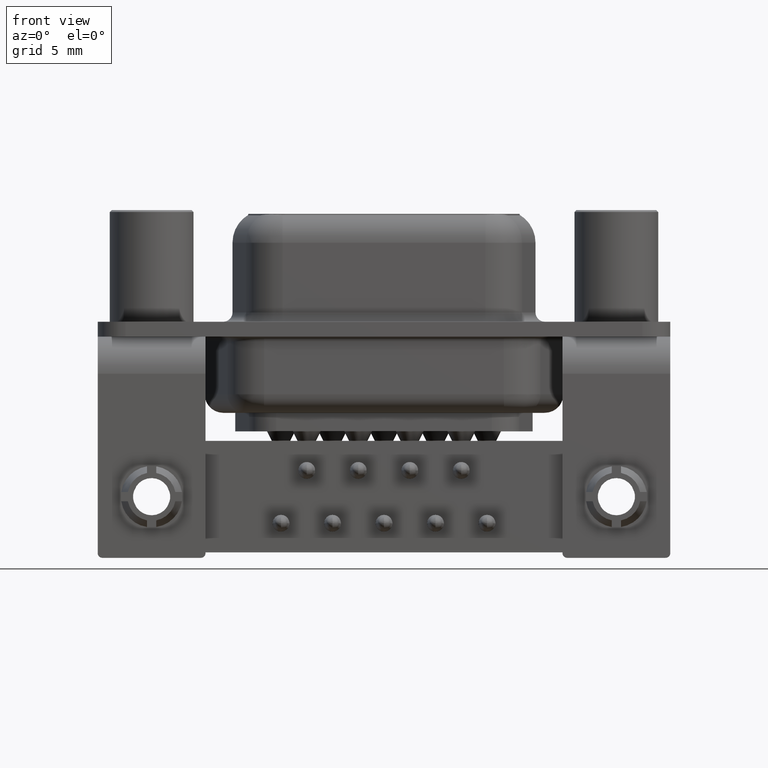
[diagram: clean part render]
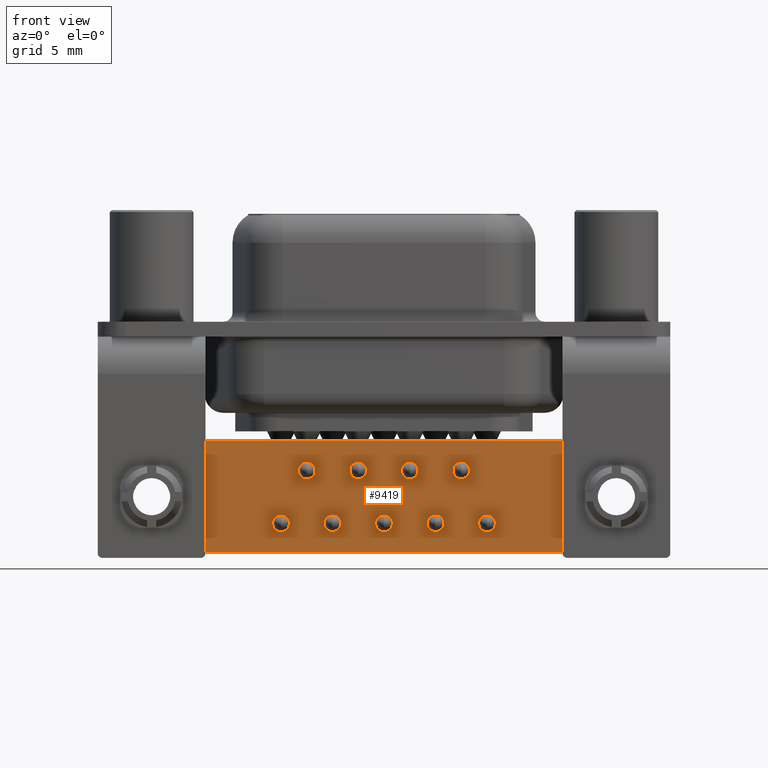
[diagram: same view with one face highlighted and labeled with its STEP entity id]
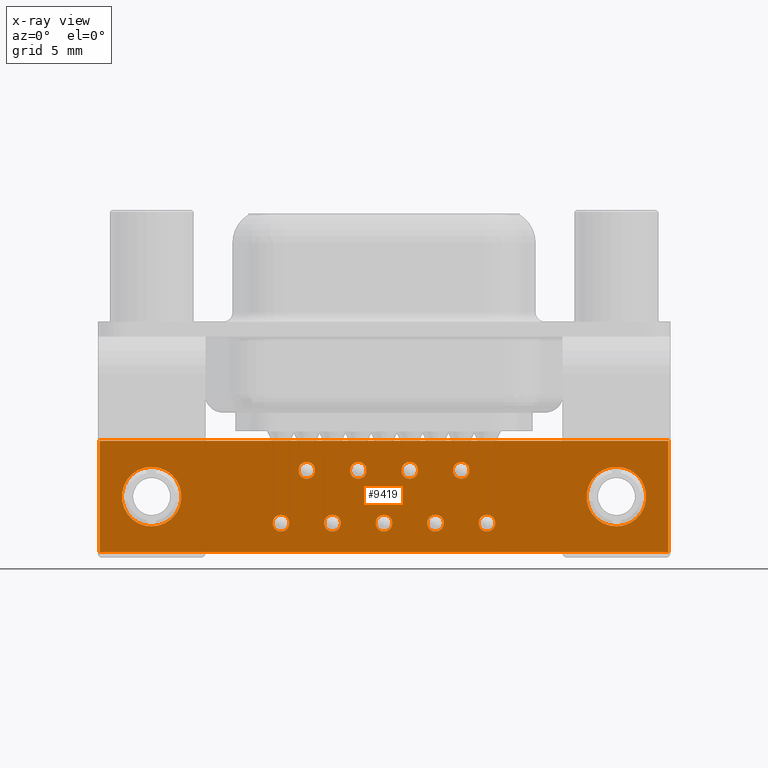
[diagram: x-ray of the same camera — body ghosted, the highlighted face saturated]
A machine part, front view. The second image highlights one B-rep face of the part: STEP entity #9419.
The next image is the same camera in x-ray: the body ghosted, the highlighted face saturated — about 0% of this face is hidden behind the body in this view.
In plain terms, the highlighted planar face has unit normal (0, 1, 0).
Its self-contained STEP definition (entity closure, byte-faithful):
#39 = VERTEX_POINT ( 'NONE', #11352 ) ;
#106 = DIRECTION ( 'NONE',  ( 0.0000000000000000000, 1.000000000000000000, 0.0000000000000000000 ) ) ;
#107 = FACE_BOUND ( 'NONE', #20068, .T. ) ;
#195 = DIRECTION ( 'NONE',  ( 0.0000000000000000000, 1.000000000000000000, 0.0000000000000000000 ) ) ;
#321 = ORIENTED_EDGE ( 'NONE', *, *, #4586, .F. ) ;
#408 = EDGE_CURVE ( 'NONE', #2821, #12172, #1470, .T. ) ;
#449 = DIRECTION ( 'NONE',  ( 0.0000000000000000000, 1.000000000000000000, 0.0000000000000000000 ) ) ;
#498 = EDGE_CURVE ( 'NONE', #19848, #5419, #979, .T. ) ;
#499 = EDGE_LOOP ( 'NONE', ( #11641, #12854 ) ) ;
#595 = CARTESIAN_POINT ( 'NONE',  ( 8.345000000000002400, -4.750000000000000000, -7.599999999999999600 ) ) ;
#657 = AXIS2_PLACEMENT_3D ( 'NONE', #4596, #15545, #6190 ) ;
#712 = VERTEX_POINT ( 'NONE', #19398 ) ;
#849 = CARTESIAN_POINT ( 'NONE',  ( 27.80000000000000100, -4.750000000000000000, -6.010000000000003300 ) ) ;
#935 = VERTEX_POINT ( 'NONE', #2479 ) ;
#936 = CARTESIAN_POINT ( 'NONE',  ( 25.00000000000000000, -4.750000000000000000, -9.009999999999999800 ) ) ;
#979 = CIRCLE ( 'NONE', #19700, 0.4499999999999981200 ) ;
#1204 = CARTESIAN_POINT ( 'NONE',  ( 8.345000000000002400, -4.750000000000000000, -8.050000000000000700 ) ) ;
#1218 = CARTESIAN_POINT ( 'NONE',  ( 16.65500000000000500, -4.750000000000000000, -7.599999999999999600 ) ) ;
#1246 = DIRECTION ( 'NONE',  ( 0.0000000000000000000, 1.000000000000000000, 0.0000000000000000000 ) ) ;
#1440 = VERTEX_POINT ( 'NONE', #11748 ) ;
#1470 = LINE ( 'NONE', #1932, #9275 ) ;
#1478 = AXIS2_PLACEMENT_3D ( 'NONE', #8654, #19621, #10212 ) ;
#1524 = ORIENTED_EDGE ( 'NONE', *, *, #6127, .T. ) ;
#1581 = CARTESIAN_POINT ( 'NONE',  ( 12.50000000000000000, -4.750000000000000000, -9.989999999999998400 ) ) ;
#1666 = DIRECTION ( 'NONE',  ( 0.0000000000000000000, 0.0000000000000000000, -1.000000000000000000 ) ) ;
#1866 = EDGE_CURVE ( 'NONE', #10040, #11985, #16587, .T. ) ;
#1932 = CARTESIAN_POINT ( 'NONE',  ( 27.80000000000000100, -4.750000000000000000, -6.010000000000003300 ) ) ;
#1991 = CIRCLE ( 'NONE', #7479, 0.4500000000000007300 ) ;
#2101 = EDGE_CURVE ( 'NONE', #16623, #935, #17321, .T. ) ;
#2143 = DIRECTION ( 'NONE',  ( 0.0000000000000000000, 0.0000000000000000000, 1.000000000000000000 ) ) ;
#2152 = VERTEX_POINT ( 'NONE', #4406 ) ;
#2197 = CIRCLE ( 'NONE', #5033, 0.4499999999999981200 ) ;
#2249 = AXIS2_PLACEMENT_3D ( 'NONE', #936, #6041, #6123 ) ;
#2344 = EDGE_CURVE ( 'NONE', #39, #2821, #18559, .T. ) ;
#2351 = DIRECTION ( 'NONE',  ( 1.000000000000000000, -0.0000000000000000000, -1.133806193448893400E-016 ) ) ;
#2395 = VERTEX_POINT ( 'NONE', #1204 ) ;
#2479 = CARTESIAN_POINT ( 'NONE',  ( 25.00000000000000000, -4.750000000000000000, -7.409999999999995700 ) ) ;
#2505 = EDGE_CURVE ( 'NONE', #12172, #712, #20292, .T. ) ;
#2544 = CARTESIAN_POINT ( 'NONE',  ( 8.345000000000002400, -4.750000000000000000, -7.150000000000000400 ) ) ;
#2646 = EDGE_LOOP ( 'NONE', ( #9829, #18103 ) ) ;
#2701 = CARTESIAN_POINT ( 'NONE',  ( 27.80000000000000100, -4.750000000000000000, -12.01000000000000300 ) ) ;
#2755 = VERTEX_POINT ( 'NONE', #5156 ) ;
#2776 = FACE_BOUND ( 'NONE', #4415, .T. ) ;
#2782 = DIRECTION ( 'NONE',  ( 0.0000000000000000000, 0.0000000000000000000, 1.000000000000000000 ) ) ;
#2821 = VERTEX_POINT ( 'NONE', #849 ) ;
#2902 = ORIENTED_EDGE ( 'NONE', *, *, #14501, .T. ) ;
#3156 = DIRECTION ( 'NONE',  ( 0.0000000000000000000, 1.000000000000000000, 0.0000000000000000000 ) ) ;
#3260 = FACE_BOUND ( 'NONE', #2646, .T. ) ;
#3299 = EDGE_CURVE ( 'NONE', #11766, #2152, #13134, .T. ) ;
#3436 = CIRCLE ( 'NONE', #1478, 0.4500000000000007300 ) ;
#3453 = ORIENTED_EDGE ( 'NONE', *, *, #9134, .T. ) ;
#3523 = CIRCLE ( 'NONE', #20105, 0.4499999999999981200 ) ;
#3559 = AXIS2_PLACEMENT_3D ( 'NONE', #5815, #1246, #12166 ) ;
#4339 = CARTESIAN_POINT ( 'NONE',  ( 11.11500000000000200, -4.750000000000000000, -8.050000000000000700 ) ) ;
#4357 = EDGE_LOOP ( 'NONE', ( #14368, #15347 ) ) ;
#4394 = DIRECTION ( 'NONE',  ( 0.0000000000000000000, 1.000000000000000000, 0.0000000000000000000 ) ) ;
#4406 = CARTESIAN_POINT ( 'NONE',  ( 1.959434878635766000E-016, -4.750000000000000000, -7.409999999999994800 ) ) ;
#4410 = DIRECTION ( 'NONE',  ( 0.0000000000000000000, 1.000000000000000000, 0.0000000000000000000 ) ) ;
#4415 = EDGE_LOOP ( 'NONE', ( #3453, #7648 ) ) ;
#4586 = EDGE_CURVE ( 'NONE', #712, #39, #10640, .T. ) ;
#4596 = CARTESIAN_POINT ( 'NONE',  ( 9.730000000000000400, -4.750000000000000000, -10.44000000000000000 ) ) ;
#4757 = CARTESIAN_POINT ( 'NONE',  ( 0.0000000000000000000, -4.750000000000000000, -10.60999999999999600 ) ) ;
#4768 = DIRECTION ( 'NONE',  ( 0.0000000000000000000, 0.0000000000000000000, 1.000000000000000000 ) ) ;
#5033 = AXIS2_PLACEMENT_3D ( 'NONE', #9544, #195, #11133 ) ;
#5103 = EDGE_LOOP ( 'NONE', ( #5841, #15041 ) ) ;
#5156 = CARTESIAN_POINT ( 'NONE',  ( 13.88500000000000200, -4.750000000000000000, -8.049999999999998900 ) ) ;
#5419 = VERTEX_POINT ( 'NONE', #10178 ) ;
#5458 = EDGE_CURVE ( 'NONE', #17314, #2395, #14046, .T. ) ;
#5567 = AXIS2_PLACEMENT_3D ( 'NONE', #9105, #449, #6361 ) ;
#5611 = CIRCLE ( 'NONE', #10937, 0.4500000000000007300 ) ;
#5815 = CARTESIAN_POINT ( 'NONE',  ( 0.0000000000000000000, -4.750000000000000000, 0.0000000000000000000 ) ) ;
#5841 = ORIENTED_EDGE ( 'NONE', *, *, #12599, .T. ) ;
#5911 = ORIENTED_EDGE ( 'NONE', *, *, #2344, .F. ) ;
#5915 = CIRCLE ( 'NONE', #12707, 0.4499999999999999000 ) ;
#6041 = DIRECTION ( 'NONE',  ( 0.0000000000000000000, 1.000000000000000000, 0.0000000000000000000 ) ) ;
#6123 = DIRECTION ( 'NONE',  ( 0.0000000000000000000, 0.0000000000000000000, 1.000000000000000000 ) ) ;
#6127 = EDGE_CURVE ( 'NONE', #11985, #10040, #17189, .T. ) ;
#6190 = DIRECTION ( 'NONE',  ( 0.0000000000000000000, 0.0000000000000000000, 1.000000000000000000 ) ) ;
#6204 = CARTESIAN_POINT ( 'NONE',  ( 11.11500000000000200, -4.750000000000000000, -7.599999999999999600 ) ) ;
#6361 = DIRECTION ( 'NONE',  ( 0.0000000000000000000, 0.0000000000000000000, 1.000000000000000000 ) ) ;
#6747 = CARTESIAN_POINT ( 'NONE',  ( 18.03999999999999900, -4.750000000000000000, -10.44000000000000000 ) ) ;
#6878 = CIRCLE ( 'NONE', #11740, 0.4500000000000007300 ) ;
#6954 = FACE_BOUND ( 'NONE', #17266, .T. ) ;
#6961 = EDGE_CURVE ( 'NONE', #2395, #17314, #5915, .T. ) ;
#7117 = CIRCLE ( 'NONE', #13806, 0.4499999999999981200 ) ;
#7223 = AXIS2_PLACEMENT_3D ( 'NONE', #7873, #18825, #9425 ) ;
#7250 = CARTESIAN_POINT ( 'NONE',  ( 8.345000000000002400, -4.750000000000000000, -7.599999999999999600 ) ) ;
#7292 = CARTESIAN_POINT ( 'NONE',  ( 15.27000000000000100, -4.750000000000000000, -10.44000000000000000 ) ) ;
#7429 = FACE_BOUND ( 'NONE', #11937, .T. ) ;
#7441 = CARTESIAN_POINT ( 'NONE',  ( 13.88500000000000200, -4.750000000000000000, -7.150000000000002100 ) ) ;
#7479 = AXIS2_PLACEMENT_3D ( 'NONE', #7576, #18515, #9135 ) ;
#7576 = CARTESIAN_POINT ( 'NONE',  ( 12.50000000000000000, -4.750000000000000000, -10.44000000000000000 ) ) ;
#7648 = ORIENTED_EDGE ( 'NONE', *, *, #19775, .T. ) ;
#7759 = DIRECTION ( 'NONE',  ( 0.0000000000000000000, 0.0000000000000000000, 1.000000000000000000 ) ) ;
#7873 = CARTESIAN_POINT ( 'NONE',  ( 25.00000000000000000, -4.750000000000000000, -9.009999999999999800 ) ) ;
#7940 = CIRCLE ( 'NONE', #12070, 0.4499999999999972900 ) ;
#7953 = DIRECTION ( 'NONE',  ( 0.0000000000000000000, 1.000000000000000000, 0.0000000000000000000 ) ) ;
#8078 = DIRECTION ( 'NONE',  ( 0.0000000000000000000, 1.000000000000000000, 0.0000000000000000000 ) ) ;
#8309 = DIRECTION ( 'NONE',  ( 0.0000000000000000000, 0.0000000000000000000, 1.000000000000000000 ) ) ;
#8471 = CARTESIAN_POINT ( 'NONE',  ( 12.50000000000000000, -4.750000000000000000, -10.44000000000000000 ) ) ;
#8489 = VERTEX_POINT ( 'NONE', #16912 ) ;
#8513 = EDGE_LOOP ( 'NONE', ( #321, #20043, #11794, #5911 ) ) ;
#8654 = CARTESIAN_POINT ( 'NONE',  ( 9.730000000000000400, -4.750000000000000000, -10.44000000000000000 ) ) ;
#8812 = ORIENTED_EDGE ( 'NONE', *, *, #3299, .T. ) ;
#8815 = EDGE_CURVE ( 'NONE', #1440, #10714, #7940, .T. ) ;
#8821 = DIRECTION ( 'NONE',  ( 0.0000000000000000000, 0.0000000000000000000, 1.000000000000000000 ) ) ;
#8863 = DIRECTION ( 'NONE',  ( 0.0000000000000000000, 0.0000000000000000000, 1.000000000000000000 ) ) ;
#8947 = VERTEX_POINT ( 'NONE', #11792 ) ;
#9105 = CARTESIAN_POINT ( 'NONE',  ( 0.0000000000000000000, -4.750000000000000000, -9.009999999999996200 ) ) ;
#9134 = EDGE_CURVE ( 'NONE', #2755, #19524, #3523, .T. ) ;
#9135 = DIRECTION ( 'NONE',  ( 0.0000000000000000000, 0.0000000000000000000, 1.000000000000000000 ) ) ;
#9192 = CARTESIAN_POINT ( 'NONE',  ( 25.00000000000000000, -4.750000000000000000, -10.61000000000000500 ) ) ;
#9275 = VECTOR ( 'NONE', #1666, 1000.000000000000000 ) ;
#9289 = EDGE_CURVE ( 'NONE', #2152, #11766, #17712, .T. ) ;
#9397 = AXIS2_PLACEMENT_3D ( 'NONE', #12532, #3156, #14090 ) ;
#9419 = ADVANCED_FACE ( 'NONE', ( #15761, #12077, #107, #11585, #7429, #3260, #19444, #15256, #11115, #6954, #2776, #18944 ), #18417, .F. ) ;
#9425 = DIRECTION ( 'NONE',  ( 0.0000000000000000000, 0.0000000000000000000, 1.000000000000000000 ) ) ;
#9444 = CARTESIAN_POINT ( 'NONE',  ( 18.03999999999999900, -4.750000000000000000, -10.44000000000000000 ) ) ;
#9483 = VERTEX_POINT ( 'NONE', #10751 ) ;
#9544 = CARTESIAN_POINT ( 'NONE',  ( 13.88500000000000200, -4.750000000000000000, -7.599999999999999600 ) ) ;
#9742 = VERTEX_POINT ( 'NONE', #4339 ) ;
#9744 = CARTESIAN_POINT ( 'NONE',  ( 9.730000000000000400, -4.750000000000000000, -9.989999999999998400 ) ) ;
#9829 = ORIENTED_EDGE ( 'NONE', *, *, #18496, .T. ) ;
#9926 = VERTEX_POINT ( 'NONE', #15626 ) ;
#10040 = VERTEX_POINT ( 'NONE', #12827 ) ;
#10046 = DIRECTION ( 'NONE',  ( 0.0000000000000000000, 0.0000000000000000000, 1.000000000000000000 ) ) ;
#10178 = CARTESIAN_POINT ( 'NONE',  ( 16.65500000000000500, -4.750000000000000000, -8.049999999999998900 ) ) ;
#10212 = DIRECTION ( 'NONE',  ( 0.0000000000000000000, 0.0000000000000000000, 1.000000000000000000 ) ) ;
#10321 = CARTESIAN_POINT ( 'NONE',  ( 16.65500000000000500, -4.750000000000000000, -7.599999999999999600 ) ) ;
#10629 = CARTESIAN_POINT ( 'NONE',  ( 27.80000000000000100, -4.750000000000000000, -6.010000000000003300 ) ) ;
#10640 = LINE ( 'NONE', #18215, #17979 ) ;
#10714 = VERTEX_POINT ( 'NONE', #14344 ) ;
#10720 = DIRECTION ( 'NONE',  ( 0.0000000000000000000, 1.000000000000000000, 0.0000000000000000000 ) ) ;
#10751 = CARTESIAN_POINT ( 'NONE',  ( 12.50000000000000000, -4.750000000000000000, -10.89000000000000100 ) ) ;
#10937 = AXIS2_PLACEMENT_3D ( 'NONE', #13781, #4410, #15344 ) ;
#11046 = DIRECTION ( 'NONE',  ( 0.0000000000000000000, 0.0000000000000000000, 1.000000000000000000 ) ) ;
#11067 = CIRCLE ( 'NONE', #14540, 0.4499999999999999000 ) ;
#11115 = FACE_BOUND ( 'NONE', #17329, .T. ) ;
#11133 = DIRECTION ( 'NONE',  ( 0.0000000000000000000, 0.0000000000000000000, 1.000000000000000000 ) ) ;
#11294 = VERTEX_POINT ( 'NONE', #12631 ) ;
#11326 = DIRECTION ( 'NONE',  ( -1.000000000000000000, 0.0000000000000000000, 1.133806193448893400E-016 ) ) ;
#11352 = CARTESIAN_POINT ( 'NONE',  ( -2.800000000000000300, -4.750000000000000000, -6.009999999999999800 ) ) ;
#11518 = EDGE_LOOP ( 'NONE', ( #8812, #18332 ) ) ;
#11523 = DIRECTION ( 'NONE',  ( 0.0000000000000000000, 1.000000000000000000, 0.0000000000000000000 ) ) ;
#11585 = FACE_BOUND ( 'NONE', #499, .T. ) ;
#11641 = ORIENTED_EDGE ( 'NONE', *, *, #20120, .T. ) ;
#11678 = EDGE_CURVE ( 'NONE', #9742, #8489, #11788, .T. ) ;
#11740 = AXIS2_PLACEMENT_3D ( 'NONE', #8471, #19449, #10046 ) ;
#11748 = CARTESIAN_POINT ( 'NONE',  ( 18.03999999999999900, -4.750000000000000000, -10.88999999999999900 ) ) ;
#11766 = VERTEX_POINT ( 'NONE', #4757 ) ;
#11788 = CIRCLE ( 'NONE', #17205, 0.4499999999999999000 ) ;
#11792 = CARTESIAN_POINT ( 'NONE',  ( 6.960000000000000900, -4.750000000000000000, -9.989999999999998400 ) ) ;
#11794 = ORIENTED_EDGE ( 'NONE', *, *, #408, .F. ) ;
#11937 = EDGE_LOOP ( 'NONE', ( #12189, #14276 ) ) ;
#11985 = VERTEX_POINT ( 'NONE', #13090 ) ;
#12028 = CIRCLE ( 'NONE', #7223, 1.600000000000005000 ) ;
#12070 = AXIS2_PLACEMENT_3D ( 'NONE', #6747, #17682, #8309 ) ;
#12077 = FACE_BOUND ( 'NONE', #11518, .T. ) ;
#12139 = DIRECTION ( 'NONE',  ( 0.0000000000000000000, 1.000000000000000000, 0.0000000000000000000 ) ) ;
#12166 = DIRECTION ( 'NONE',  ( 0.0000000000000000000, -0.0000000000000000000, 1.000000000000000000 ) ) ;
#12172 = VERTEX_POINT ( 'NONE', #18350 ) ;
#12189 = ORIENTED_EDGE ( 'NONE', *, *, #6961, .T. ) ;
#12532 = CARTESIAN_POINT ( 'NONE',  ( 6.960000000000000900, -4.750000000000000000, -10.44000000000000000 ) ) ;
#12599 = EDGE_CURVE ( 'NONE', #9483, #19129, #6878, .T. ) ;
#12631 = CARTESIAN_POINT ( 'NONE',  ( 6.960000000000000900, -4.750000000000000000, -10.89000000000000100 ) ) ;
#12707 = AXIS2_PLACEMENT_3D ( 'NONE', #595, #11523, #2143 ) ;
#12827 = CARTESIAN_POINT ( 'NONE',  ( 15.27000000000000100, -4.750000000000000000, -10.88999999999999300 ) ) ;
#12854 = ORIENTED_EDGE ( 'NONE', *, *, #14137, .T. ) ;
#13090 = CARTESIAN_POINT ( 'NONE',  ( 15.27000000000000100, -4.750000000000000000, -9.990000000000005500 ) ) ;
#13134 = CIRCLE ( 'NONE', #5567, 1.600000000000000800 ) ;
#13770 = CARTESIAN_POINT ( 'NONE',  ( 13.88500000000000200, -4.750000000000000000, -7.599999999999999600 ) ) ;
#13781 = CARTESIAN_POINT ( 'NONE',  ( 6.960000000000000900, -4.750000000000000000, -10.44000000000000000 ) ) ;
#13806 = AXIS2_PLACEMENT_3D ( 'NONE', #1218, #12139, #2782 ) ;
#14046 = CIRCLE ( 'NONE', #15036, 0.4499999999999999000 ) ;
#14090 = DIRECTION ( 'NONE',  ( 0.0000000000000000000, 0.0000000000000000000, 1.000000000000000000 ) ) ;
#14137 = EDGE_CURVE ( 'NONE', #8947, #11294, #19899, .T. ) ;
#14185 = EDGE_LOOP ( 'NONE', ( #15122, #1524 ) ) ;
#14276 = ORIENTED_EDGE ( 'NONE', *, *, #5458, .T. ) ;
#14316 = CARTESIAN_POINT ( 'NONE',  ( 16.65500000000000500, -4.750000000000000000, -7.150000000000002100 ) ) ;
#14344 = CARTESIAN_POINT ( 'NONE',  ( 18.03999999999999900, -4.750000000000000000, -9.990000000000000200 ) ) ;
#14368 = ORIENTED_EDGE ( 'NONE', *, *, #19527, .T. ) ;
#14501 = EDGE_CURVE ( 'NONE', #10714, #1440, #15350, .T. ) ;
#14540 = AXIS2_PLACEMENT_3D ( 'NONE', #17436, #8078, #19025 ) ;
#15036 = AXIS2_PLACEMENT_3D ( 'NONE', #7250, #18202, #8821 ) ;
#15041 = ORIENTED_EDGE ( 'NONE', *, *, #18034, .T. ) ;
#15067 = ORIENTED_EDGE ( 'NONE', *, *, #2101, .T. ) ;
#15122 = ORIENTED_EDGE ( 'NONE', *, *, #1866, .T. ) ;
#15256 = FACE_BOUND ( 'NONE', #14185, .T. ) ;
#15329 = DIRECTION ( 'NONE',  ( 0.0000000000000000000, 0.0000000000000000000, 1.000000000000000000 ) ) ;
#15344 = DIRECTION ( 'NONE',  ( 0.0000000000000000000, 0.0000000000000000000, 1.000000000000000000 ) ) ;
#15347 = ORIENTED_EDGE ( 'NONE', *, *, #498, .T. ) ;
#15350 = CIRCLE ( 'NONE', #19522, 0.4499999999999972900 ) ;
#15409 = DIRECTION ( 'NONE',  ( 0.0000000000000000000, 0.0000000000000000000, 1.000000000000000000 ) ) ;
#15493 = AXIS2_PLACEMENT_3D ( 'NONE', #17299, #7953, #18913 ) ;
#15545 = DIRECTION ( 'NONE',  ( 0.0000000000000000000, 1.000000000000000000, 0.0000000000000000000 ) ) ;
#15626 = CARTESIAN_POINT ( 'NONE',  ( 9.730000000000000400, -4.750000000000000000, -10.89000000000000100 ) ) ;
#15716 = DIRECTION ( 'NONE',  ( 0.0000000000000000000, 1.000000000000000000, 0.0000000000000000000 ) ) ;
#15727 = CIRCLE ( 'NONE', #657, 0.4500000000000007300 ) ;
#15761 = FACE_OUTER_BOUND ( 'NONE', #8513, .T. ) ;
#15853 = ORIENTED_EDGE ( 'NONE', *, *, #8815, .T. ) ;
#15989 = ORIENTED_EDGE ( 'NONE', *, *, #17653, .T. ) ;
#16094 = VECTOR ( 'NONE', #11326, 1000.000000000000000 ) ;
#16344 = AXIS2_PLACEMENT_3D ( 'NONE', #7292, #18238, #8863 ) ;
#16587 = CIRCLE ( 'NONE', #16642, 0.4499999999999937900 ) ;
#16623 = VERTEX_POINT ( 'NONE', #9192 ) ;
#16642 = AXIS2_PLACEMENT_3D ( 'NONE', #18897, #10720, #4768 ) ;
#16912 = CARTESIAN_POINT ( 'NONE',  ( 11.11500000000000200, -4.750000000000000000, -7.150000000000000400 ) ) ;
#16967 = EDGE_CURVE ( 'NONE', #18320, #9926, #15727, .T. ) ;
#17112 = DIRECTION ( 'NONE',  ( 0.0000000000000000000, 1.000000000000000000, 0.0000000000000000000 ) ) ;
#17189 = CIRCLE ( 'NONE', #16344, 0.4499999999999937900 ) ;
#17205 = AXIS2_PLACEMENT_3D ( 'NONE', #6204, #17112, #7759 ) ;
#17266 = EDGE_LOOP ( 'NONE', ( #17367, #15989 ) ) ;
#17299 = CARTESIAN_POINT ( 'NONE',  ( 0.0000000000000000000, -4.750000000000000000, -9.009999999999996200 ) ) ;
#17314 = VERTEX_POINT ( 'NONE', #2544 ) ;
#17321 = CIRCLE ( 'NONE', #2249, 1.600000000000005000 ) ;
#17329 = EDGE_LOOP ( 'NONE', ( #15853, #2902 ) ) ;
#17367 = ORIENTED_EDGE ( 'NONE', *, *, #11678, .T. ) ;
#17436 = CARTESIAN_POINT ( 'NONE',  ( 11.11500000000000200, -4.750000000000000000, -7.599999999999999600 ) ) ;
#17557 = EDGE_CURVE ( 'NONE', #935, #16623, #12028, .T. ) ;
#17653 = EDGE_CURVE ( 'NONE', #8489, #9742, #11067, .T. ) ;
#17682 = DIRECTION ( 'NONE',  ( 0.0000000000000000000, 1.000000000000000000, 0.0000000000000000000 ) ) ;
#17712 = CIRCLE ( 'NONE', #15493, 1.600000000000000800 ) ;
#17979 = VECTOR ( 'NONE', #18076, 1000.000000000000000 ) ;
#18034 = EDGE_CURVE ( 'NONE', #19129, #9483, #1991, .T. ) ;
#18059 = VECTOR ( 'NONE', #2351, 1000.000000000000000 ) ;
#18076 = DIRECTION ( 'NONE',  ( -0.0000000000000000000, -0.0000000000000000000, 1.000000000000000000 ) ) ;
#18103 = ORIENTED_EDGE ( 'NONE', *, *, #16967, .T. ) ;
#18202 = DIRECTION ( 'NONE',  ( 0.0000000000000000000, 1.000000000000000000, 0.0000000000000000000 ) ) ;
#18215 = CARTESIAN_POINT ( 'NONE',  ( -2.800000000000000300, -4.750000000000000000, -6.009999999999999800 ) ) ;
#18238 = DIRECTION ( 'NONE',  ( 0.0000000000000000000, 1.000000000000000000, 0.0000000000000000000 ) ) ;
#18320 = VERTEX_POINT ( 'NONE', #9744 ) ;
#18332 = ORIENTED_EDGE ( 'NONE', *, *, #9289, .T. ) ;
#18350 = CARTESIAN_POINT ( 'NONE',  ( 27.80000000000000100, -4.750000000000000000, -12.01000000000000300 ) ) ;
#18417 = PLANE ( 'NONE',  #3559 ) ;
#18496 = EDGE_CURVE ( 'NONE', #9926, #18320, #3436, .T. ) ;
#18515 = DIRECTION ( 'NONE',  ( 0.0000000000000000000, 1.000000000000000000, 0.0000000000000000000 ) ) ;
#18559 = LINE ( 'NONE', #10629, #18059 ) ;
#18562 = ORIENTED_EDGE ( 'NONE', *, *, #17557, .T. ) ;
#18825 = DIRECTION ( 'NONE',  ( 0.0000000000000000000, 1.000000000000000000, 0.0000000000000000000 ) ) ;
#18897 = CARTESIAN_POINT ( 'NONE',  ( 15.27000000000000100, -4.750000000000000000, -10.44000000000000000 ) ) ;
#18913 = DIRECTION ( 'NONE',  ( 0.0000000000000000000, 0.0000000000000000000, 1.000000000000000000 ) ) ;
#18944 = FACE_BOUND ( 'NONE', #4357, .T. ) ;
#19025 = DIRECTION ( 'NONE',  ( 0.0000000000000000000, 0.0000000000000000000, 1.000000000000000000 ) ) ;
#19129 = VERTEX_POINT ( 'NONE', #1581 ) ;
#19398 = CARTESIAN_POINT ( 'NONE',  ( -2.800000000000000300, -4.750000000000000000, -12.01000000000000000 ) ) ;
#19444 = FACE_BOUND ( 'NONE', #5103, .T. ) ;
#19449 = DIRECTION ( 'NONE',  ( 0.0000000000000000000, 1.000000000000000000, 0.0000000000000000000 ) ) ;
#19522 = AXIS2_PLACEMENT_3D ( 'NONE', #9444, #106, #11046 ) ;
#19524 = VERTEX_POINT ( 'NONE', #7441 ) ;
#19527 = EDGE_CURVE ( 'NONE', #5419, #19848, #7117, .T. ) ;
#19621 = DIRECTION ( 'NONE',  ( 0.0000000000000000000, 1.000000000000000000, 0.0000000000000000000 ) ) ;
#19700 = AXIS2_PLACEMENT_3D ( 'NONE', #10321, #15716, #15409 ) ;
#19775 = EDGE_CURVE ( 'NONE', #19524, #2755, #2197, .T. ) ;
#19848 = VERTEX_POINT ( 'NONE', #14316 ) ;
#19899 = CIRCLE ( 'NONE', #9397, 0.4500000000000007300 ) ;
#20043 = ORIENTED_EDGE ( 'NONE', *, *, #2505, .F. ) ;
#20068 = EDGE_LOOP ( 'NONE', ( #15067, #18562 ) ) ;
#20105 = AXIS2_PLACEMENT_3D ( 'NONE', #13770, #4394, #15329 ) ;
#20120 = EDGE_CURVE ( 'NONE', #11294, #8947, #5611, .T. ) ;
#20292 = LINE ( 'NONE', #2701, #16094 ) ;